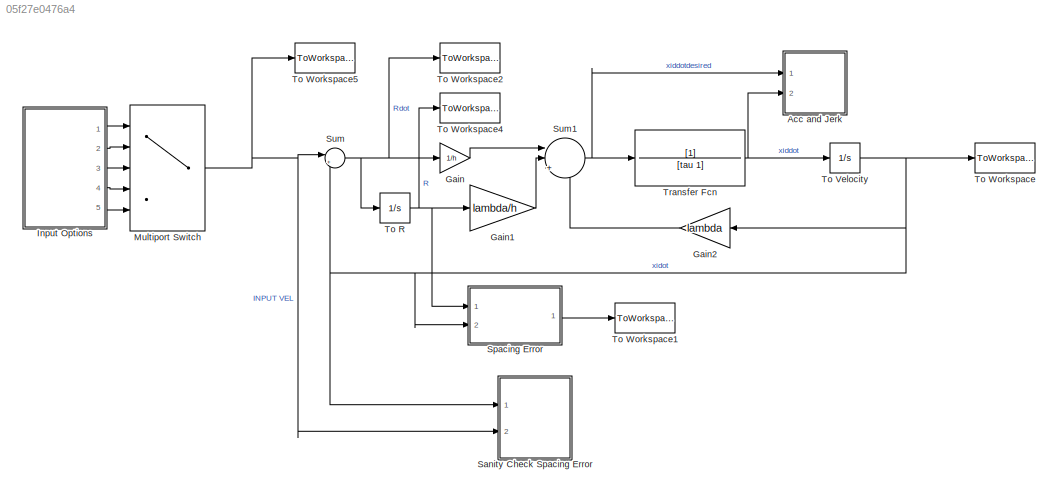
MODEL slx_05f27e0476a4
KIND model
CONFIG AbsTol = auto
CONFIG EnableMultiTasking = off
CONFIG FixedStep = auto
CONFIG MaxStep = .1
CONFIG MinStep = auto
CONFIG RelTol = 1e-3
CONFIG SampleTimeConstraint = Unconstrained
CONFIG Solver = ode45
CONFIG SolverName = ode45
CONFIG StartTime = 0.0
CONFIG StopTime = tsim
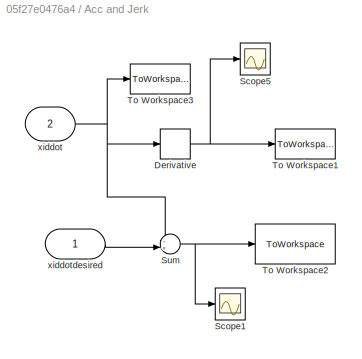
BLOCK [SubSystem] Acc and Jerk
  Ports = [2]
  RequestExecContextInheritance = off
BLOCK [Derivative] Acc and Jerk/Derivative
BLOCK [Scope] Acc and Jerk/Scope1
  Floating = off
  NumInputPorts = 1
  Ports = [1]
  ScopeSpecificationString = Simulink.scopes.TimeScopeBlockCfg('CurrentConfiguration', extmgr.ConfigurationSet(extmgr.Configuration('Core','General UI',true),extmgr.Configuration('Core','Source UI',true),extmgr.Configuration('Sources','WiredSimulink',true,'DataLoggingVariableName','ScopeData1'),extmgr.Configuration('Visuals','Time Domain',true,'SerializedDisplays',{struct('MinYLimReal','-0.11282','MaxYLimReal','1.01534','YLab...<+1397ch>
BLOCK [Scope] Acc and Jerk/Scope5
  Floating = off
  NumInputPorts = 1
  Ports = [1]
  ScopeSpecificationString = Simulink.scopes.TimeScopeBlockCfg('CurrentConfiguration', extmgr.ConfigurationSet(extmgr.Configuration('Core','General UI',true),extmgr.Configuration('Core','Source UI',true),extmgr.Configuration('Sources','WiredSimulink',true,'DataLoggingVariableName','ScopeData5'),extmgr.Configuration('Visuals','Time Domain',true,'SerializedDisplays',{struct('MinYLimReal','-1.87286','MaxYLimReal','2.21025','YLab...<+1402ch>
BLOCK [Sum] Acc and Jerk/Sum
  IconShape = round
  InputSameDT = off
  Inputs = -+|
  OutDataTypeStr = Inherit: Inherit via internal rule
  Ports = [2, 1]
  SaturateOnIntegerOverflow = off
BLOCK [ToWorkspace] Acc and Jerk/To Workspace1
  FixptAsFi = on
  MaxDataPoints = inf
  Ports = [1]
  SampleTime = -1
  Save2DSignal = 3-D array (concatenate along third dimension)
  VariableName = Jerk
BLOCK [ToWorkspace] Acc and Jerk/To Workspace2
  FixptAsFi = on
  MaxDataPoints = inf
  Ports = [1]
  SampleTime = -1
  Save2DSignal = 3-D array (concatenate along third dimension)
  VariableName = AccelerationError
BLOCK [ToWorkspace] Acc and Jerk/To Workspace3
  FixptAsFi = on
  MaxDataPoints = inf
  Ports = [1]
  SampleTime = -1
  Save2DSignal = 3-D array (concatenate along third dimension)
  VariableName = Acceleration
BLOCK [Inport] Acc and Jerk/xiddot
  IconDisplay = Port number and signal name
  Port = 2
BLOCK [Inport] Acc and Jerk/xiddotdesired
  IconDisplay = Port number and signal name
BLOCK [Gain] Gain
  Gain = 1/h
  OutDataTypeStr = Inherit: Inherit via internal rule
  ParamDataTypeStr = Inherit: Inherit via internal rule
  SaturateOnIntegerOverflow = off
BLOCK [Gain] Gain1
  Gain = lambda/h
  OutDataTypeStr = Inherit: Inherit via internal rule
  ParamDataTypeStr = Inherit: Inherit via internal rule
  SaturateOnIntegerOverflow = off
BLOCK [Gain] Gain2
  Gain = lambda
  OutDataTypeStr = Inherit: Inherit via internal rule
  ParamDataTypeStr = Inherit: Inherit via internal rule
  SaturateOnIntegerOverflow = off
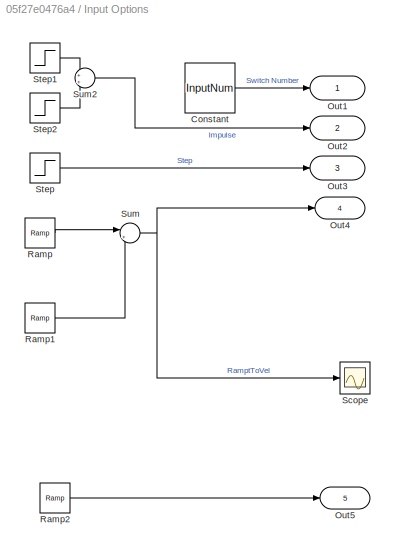
BLOCK [SubSystem] Input Options
  Ports = [0, 5]
  RequestExecContextInheritance = off
BLOCK [Constant] Input Options/Constant
  Value = InputNum
BLOCK [Outport] Input Options/Out1
  IconDisplay = Port number and signal name
BLOCK [Outport] Input Options/Out2
  IconDisplay = Port number and signal name
  Port = 2
BLOCK [Outport] Input Options/Out3
  IconDisplay = Port number and signal name
  Port = 3
BLOCK [Outport] Input Options/Out4
  IconDisplay = Port number and signal name
  Port = 4
BLOCK [Outport] Input Options/Out5
  IconDisplay = Port number and signal name
  Port = 5
BLOCK [Reference] Input Options/Ramp  REF=simulink/Sources/Ramp
  Ports = [0, 1]
  SourceBlock = simulink/Sources/Ramp
  SourceProductBaseCode = SL
  SourceProductName = Simulink
  SourceType = Ramp
BLOCK [Reference] Input Options/Ramp1  REF=simulink/Sources/Ramp
  Ports = [0, 1]
  SourceBlock = simulink/Sources/Ramp
  SourceProductBaseCode = SL
  SourceProductName = Simulink
  SourceType = Ramp
BLOCK [Reference] Input Options/Ramp2  REF=simulink/Sources/Ramp
  Ports = [0, 1]
  SourceBlock = simulink/Sources/Ramp
  SourceProductBaseCode = SL
  SourceProductName = Simulink
  SourceType = Ramp
BLOCK [Scope] Input Options/Scope
  Floating = off
  NumInputPorts = 1
  Ports = [1]
  ScopeSpecificationString = Simulink.scopes.TimeScopeBlockCfg('CurrentConfiguration', extmgr.ConfigurationSet(extmgr.Configuration('Core','General UI',true),extmgr.Configuration('Core','Source UI',true),extmgr.Configuration('Sources','WiredSimulink',true,'DataLoggingVariableName','ScopeData1'),extmgr.Configuration('Visuals','Time Domain',true,'SerializedDisplays',{struct('MinYLimReal','3.93437','MaxYLimReal','34.59063','YLab...<+1402ch>
BLOCK [Step] Input Options/Step
  After = EndVel
  Before = StartVel
  SampleTime = 0
  Time = InputTime
BLOCK [Step] Input Options/Step1
  After = StartVel+(1*10^10)
  Before = StartVel
  SampleTime = 0
  Time = InputTime
BLOCK [Step] Input Options/Step2
  After = -(1*10^10)
  SampleTime = 0
  Time = InputTime + (1*10^-10)
BLOCK [Sum] Input Options/Sum
  IconShape = round
  InputSameDT = off
  Inputs = |++
  OutDataTypeStr = Inherit: Inherit via internal rule
  Ports = [2, 1]
  SaturateOnIntegerOverflow = off
BLOCK [Sum] Input Options/Sum2
  IconShape = round
  InputSameDT = off
  OutDataTypeStr = Inherit: Inherit via internal rule
  Ports = [2, 1]
  SaturateOnIntegerOverflow = off
BLOCK [MultiPortSwitch] Multiport Switch
  InputSameDT = off
  Inputs = 4
  Ports = [5, 1]
  SaturateOnIntegerOverflow = off
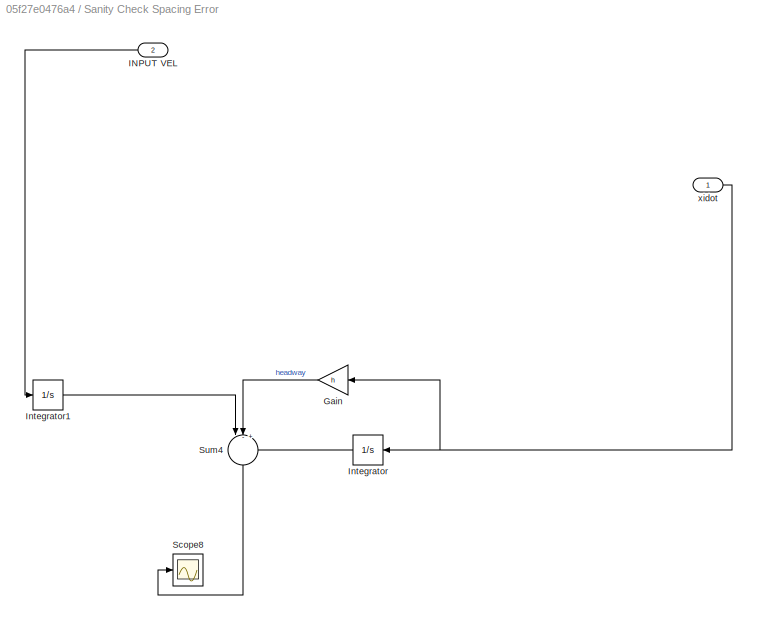
BLOCK [SubSystem] Sanity Check Spacing Error
  Ports = [2]
  RequestExecContextInheritance = off
BLOCK [Gain] Sanity Check Spacing Error/Gain
  Gain = h
  OutDataTypeStr = Inherit: Inherit via internal rule
  ParamDataTypeStr = Inherit: Inherit via internal rule
  SaturateOnIntegerOverflow = off
BLOCK [Inport] Sanity Check Spacing Error/INPUT VEL
  IconDisplay = Port number
  Port = 2
BLOCK [Integrator] Sanity Check Spacing Error/Integrator
  Ports = [1, 1]
BLOCK [Integrator] Sanity Check Spacing Error/Integrator1
  InitialCondition = h*StartVel
  Ports = [1, 1]
BLOCK [Scope] Sanity Check Spacing Error/Scope8
  Floating = off
  NumInputPorts = 1
  Ports = [1]
  ScopeSpecificationString = Simulink.scopes.TimeScopeBlockCfg('CurrentConfiguration', extmgr.ConfigurationSet(extmgr.Configuration('Core','General UI',true),extmgr.Configuration('Core','Source UI',true),extmgr.Configuration('Sources','WiredSimulink',true,'DataLoggingVariableName','ScopeData8'),extmgr.Configuration('Visuals','Time Domain',true,'SerializedDisplays',{struct('MinYLimReal','-1.14192','MaxYLimReal','0.27725','YLab...<+1398ch>
BLOCK [Sum] Sanity Check Spacing Error/Sum4
  IconShape = round
  InputSameDT = off
  Inputs = |-++
  OutDataTypeStr = Inherit: Inherit via internal rule
  Ports = [3, 1]
  SaturateOnIntegerOverflow = off
BLOCK [Inport] Sanity Check Spacing Error/xidot
  IconDisplay = Port number
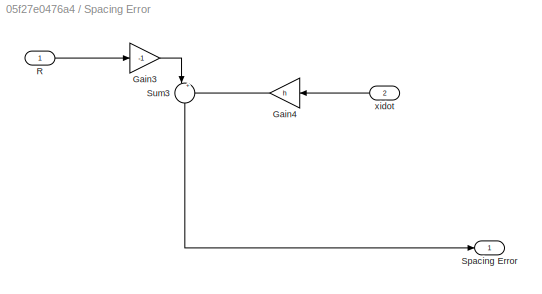
BLOCK [SubSystem] Spacing Error
  Ports = [2, 1]
  RequestExecContextInheritance = off
BLOCK [Gain] Spacing Error/Gain3
  Gain = -1
  OutDataTypeStr = Inherit: Inherit via internal rule
  ParamDataTypeStr = Inherit: Inherit via internal rule
  SaturateOnIntegerOverflow = off
BLOCK [Gain] Spacing Error/Gain4
  Gain = h
  OutDataTypeStr = Inherit: Inherit via internal rule
  ParamDataTypeStr = Inherit: Inherit via internal rule
  SaturateOnIntegerOverflow = off
BLOCK [Inport] Spacing Error/R
  IconDisplay = Port number
BLOCK [Outport] Spacing Error/Spacing Error
  IconDisplay = Port number
BLOCK [Sum] Spacing Error/Sum3
  IconShape = round
  InputSameDT = off
  Inputs = |++
  OutDataTypeStr = Inherit: Inherit via internal rule
  Ports = [2, 1]
  SaturateOnIntegerOverflow = off
BLOCK [Inport] Spacing Error/xidot
  IconDisplay = Port number
  Port = 2
BLOCK [Sum] Sum
  IconShape = round
  InputSameDT = off
  Inputs = |+-
  OutDataTypeStr = Inherit: Inherit via internal rule
  Ports = [2, 1]
  SaturateOnIntegerOverflow = off
BLOCK [Sum] Sum1
  IconShape = round
  InputSameDT = off
  Inputs = ||++-
  OutDataTypeStr = Inherit: Inherit via internal rule
  Ports = [3, 1]
  SaturateOnIntegerOverflow = off
BLOCK [Integrator] To R
  InitialCondition = h*StartVel
  Ports = [1, 1]
BLOCK [Integrator] To Velocity
  InitialCondition = StartVel
  Ports = [1, 1]
BLOCK [ToWorkspace] To Workspace
  FixptAsFi = on
  MaxDataPoints = inf
  Ports = [1]
  SampleTime = -1
  Save2DSignal = 3-D array (concatenate along third dimension)
  VariableName = Velocity
BLOCK [ToWorkspace] To Workspace1
  FixptAsFi = on
  MaxDataPoints = inf
  Ports = [1]
  SampleTime = -1
  Save2DSignal = 3-D array (concatenate along third dimension)
  VariableName = SpacingError
BLOCK [ToWorkspace] To Workspace2
  FixptAsFi = on
  MaxDataPoints = inf
  Ports = [1]
  SampleTime = -1
  Save2DSignal = 3-D array (concatenate along third dimension)
  VariableName = Rdot
BLOCK [ToWorkspace] To Workspace4
  FixptAsFi = on
  MaxDataPoints = inf
  Ports = [1]
  SampleTime = -1
  Save2DSignal = 3-D array (concatenate along third dimension)
  VariableName = R
BLOCK [ToWorkspace] To Workspace5
  FixptAsFi = on
  MaxDataPoints = inf
  Ports = [1]
  SampleTime = -1
  Save2DSignal = 3-D array (concatenate along third dimension)
  VariableName = Input
BLOCK [TransferFcn] Transfer Fcn
  Denominator = [tau 1]
NET Acc and Jerk/Derivative:1 -> Acc and Jerk/Scope5:1, Acc and Jerk/To Workspace1:1
NET Acc and Jerk/Sum:1 -> Acc and Jerk/Scope1:1, Acc and Jerk/To Workspace2:1
NET Acc and Jerk/xiddot:1 -> Acc and Jerk/Derivative:1, Acc and Jerk/Sum:1, Acc and Jerk/To Workspace3:1
LINE Acc and Jerk/xiddotdesired:1 -> Acc and Jerk/Sum:2
LINE Gain1:1 -> Sum1:2
LINE Gain2:1 -> Sum1:3
LINE Gain:1 -> Sum1:1
LINE Input Options/Constant:1 -> Input Options/Out1:1
LINE Input Options/Ramp1:1 -> Input Options/Sum:2
LINE Input Options/Ramp2:1 -> Input Options/Out5:1
LINE Input Options/Ramp:1 -> Input Options/Sum:1
LINE Input Options/Step1:1 -> Input Options/Sum2:1
LINE Input Options/Step2:1 -> Input Options/Sum2:2
LINE Input Options/Step:1 -> Input Options/Out3:1
LINE Input Options/Sum2:1 -> Input Options/Out2:1
NET Input Options/Sum:1 -> Input Options/Out4:1, Input Options/Scope:1
LINE Input Options:1 -> Multiport Switch:1
LINE Input Options:2 -> Multiport Switch:2
LINE Input Options:3 -> Multiport Switch:3
LINE Input Options:4 -> Multiport Switch:4
LINE Input Options:5 -> Multiport Switch:5
NET Multiport Switch:1 -> Sanity Check Spacing Error:2, Sum:1, To Workspace5:1
LINE Sanity Check Spacing Error/Gain:1 -> Sanity Check Spacing Error/Sum4:2
LINE Sanity Check Spacing Error/INPUT VEL:1 -> Sanity Check Spacing Error/Integrator1:1
LINE Sanity Check Spacing Error/Integrator1:1 -> Sanity Check Spacing Error/Sum4:1
LINE Sanity Check Spacing Error/Integrator:1 -> Sanity Check Spacing Error/Sum4:3
LINE Sanity Check Spacing Error/Sum4:1 -> Sanity Check Spacing Error/Scope8:1
NET Sanity Check Spacing Error/xidot:1 -> Sanity Check Spacing Error/Gain:1, Sanity Check Spacing Error/Integrator:1
LINE Spacing Error/Gain3:1 -> Spacing Error/Sum3:1
LINE Spacing Error/Gain4:1 -> Spacing Error/Sum3:2
LINE Spacing Error/R:1 -> Spacing Error/Gain3:1
LINE Spacing Error/Sum3:1 -> Spacing Error/Spacing Error:1
LINE Spacing Error/xidot:1 -> Spacing Error/Gain4:1
LINE Spacing Error:1 -> To Workspace1:1
NET Sum1:1 -> Acc and Jerk:1, Transfer Fcn:1
NET Sum:1 -> Gain:1, To R:1, To Workspace2:1
NET To R:1 -> Gain1:1, Spacing Error:1, To Workspace4:1
NET To Velocity:1 -> Gain2:1, Sanity Check Spacing Error:1, Spacing Error:2, Sum:2, To Workspace:1
NET Transfer Fcn:1 -> Acc and Jerk:2, To Velocity:1
note: NET lines group one-source signal fan-out (src -> all destinations, sorted); 1:1 wires keep LINE
